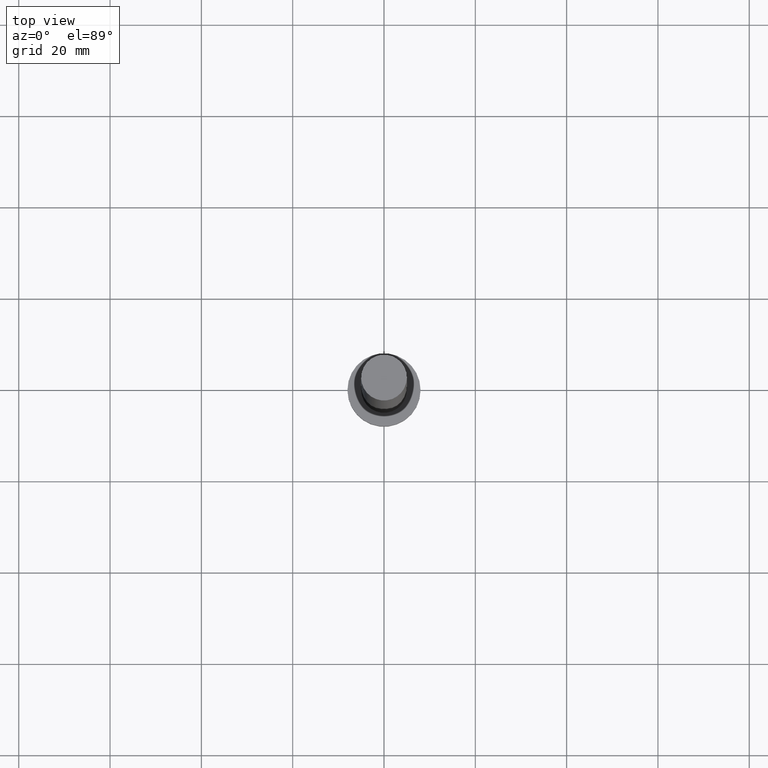
[diagram: clean part render]
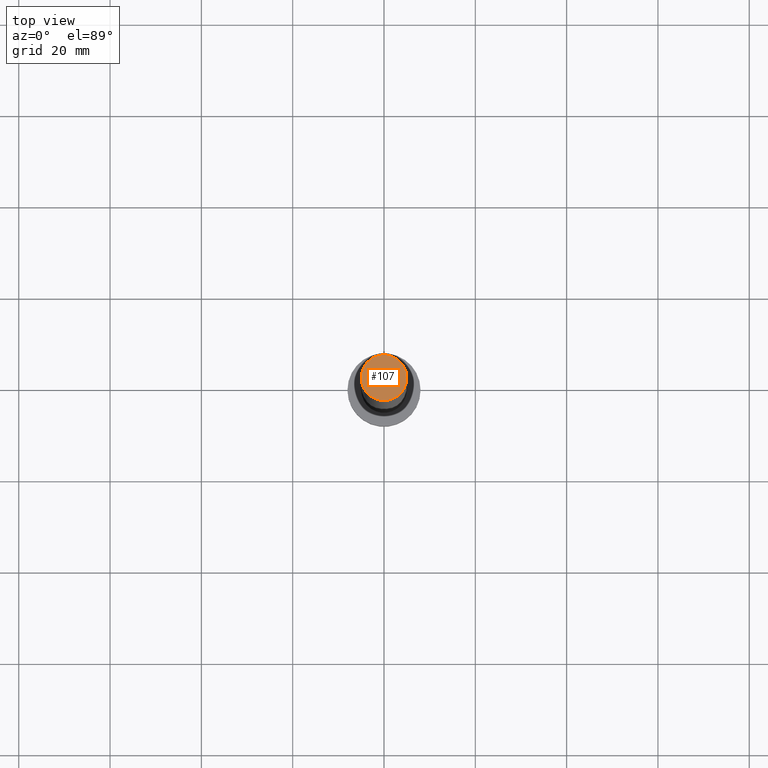
[diagram: same view with one face highlighted and labeled with its STEP entity id]
A machine part, top view. The second image highlights one B-rep face of the part: STEP entity #107.
In plain terms, the highlighted planar face has unit normal (0, 0, 1).
Its self-contained STEP definition (entity closure, byte-faithful):
#13 = CARTESIAN_POINT ( 'NONE',  ( 0.000000000000000000, 0.000000000000000000, 158.5999999999999943 ) ) ;
#15 = AXIS2_PLACEMENT_3D ( 'NONE', #13, #136, #212 ) ;
#38 = DIRECTION ( 'NONE',  ( 1.000000000000000000, 0.000000000000000000, -0.000000000000000000 ) ) ;
#52 = CARTESIAN_POINT ( 'NONE',  ( 5.000000000000000000, 6.123233995736766282E-16, 158.5999999999999943 ) ) ;
#55 = VERTEX_POINT ( 'NONE', #52 ) ;
#89 = CIRCLE ( 'NONE', #15, 5.000000000000000000 ) ;
#105 = AXIS2_PLACEMENT_3D ( 'NONE', #159, #213, #134 ) ;
#107 = ADVANCED_FACE ( 'NONE', ( #128 ), #190, .T. ) ;
#118 = AXIS2_PLACEMENT_3D ( 'NONE', #156, #214, #38 ) ;
#128 = FACE_OUTER_BOUND ( 'NONE', #216, .T. ) ;
#134 = DIRECTION ( 'NONE',  ( 1.000000000000000000, 0.000000000000000000, 0.000000000000000000 ) ) ;
#136 = DIRECTION ( 'NONE',  ( 0.000000000000000000, 0.000000000000000000, 1.000000000000000000 ) ) ;
#149 = EDGE_CURVE ( 'NONE', #55, #169, #217, .T. ) ;
#156 = CARTESIAN_POINT ( 'NONE',  ( 0.000000000000000000, 0.000000000000000000, 158.5999999999999943 ) ) ;
#159 = CARTESIAN_POINT ( 'NONE',  ( 0.000000000000000000, 0.000000000000000000, 158.5999999999999943 ) ) ;
#160 = EDGE_CURVE ( 'NONE', #169, #55, #89, .T. ) ;
#163 = CARTESIAN_POINT ( 'NONE',  ( -5.000000000000000000, 0.000000000000000000, 158.5999999999999943 ) ) ;
#169 = VERTEX_POINT ( 'NONE', #163 ) ;
#190 = PLANE ( 'NONE',  #118 ) ;
#209 = ORIENTED_EDGE ( 'NONE', *, *, #149, .T. ) ;
#212 = DIRECTION ( 'NONE',  ( 1.000000000000000000, 0.000000000000000000, 0.000000000000000000 ) ) ;
#213 = DIRECTION ( 'NONE',  ( 0.000000000000000000, 0.000000000000000000, 1.000000000000000000 ) ) ;
#214 = DIRECTION ( 'NONE',  ( 0.000000000000000000, 0.000000000000000000, 1.000000000000000000 ) ) ;
#216 = EDGE_LOOP ( 'NONE', ( #220, #209 ) ) ;
#217 = CIRCLE ( 'NONE', #105, 5.000000000000000000 ) ;
#220 = ORIENTED_EDGE ( 'NONE', *, *, #160, .T. ) ;